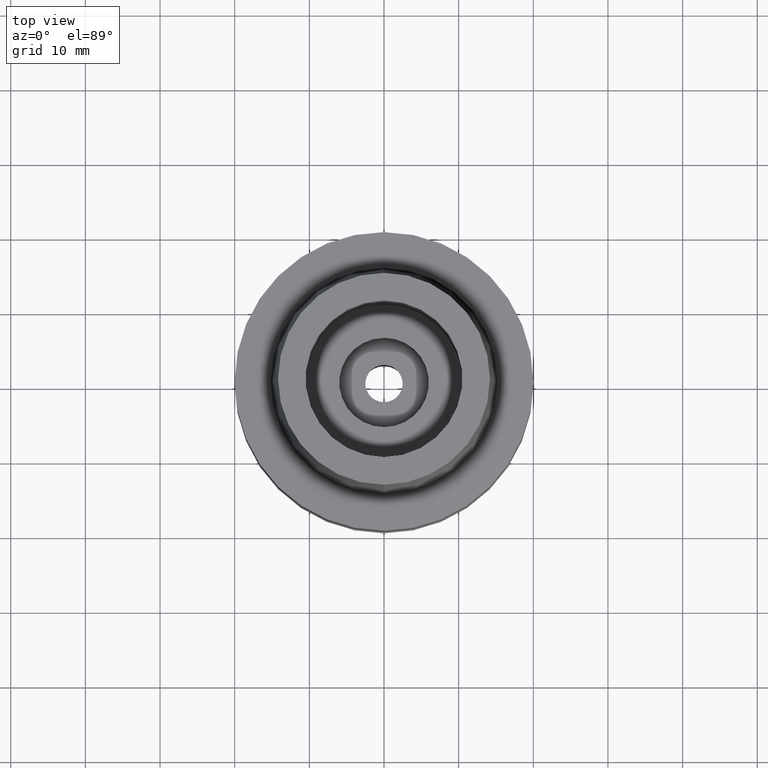
[diagram: clean part render]
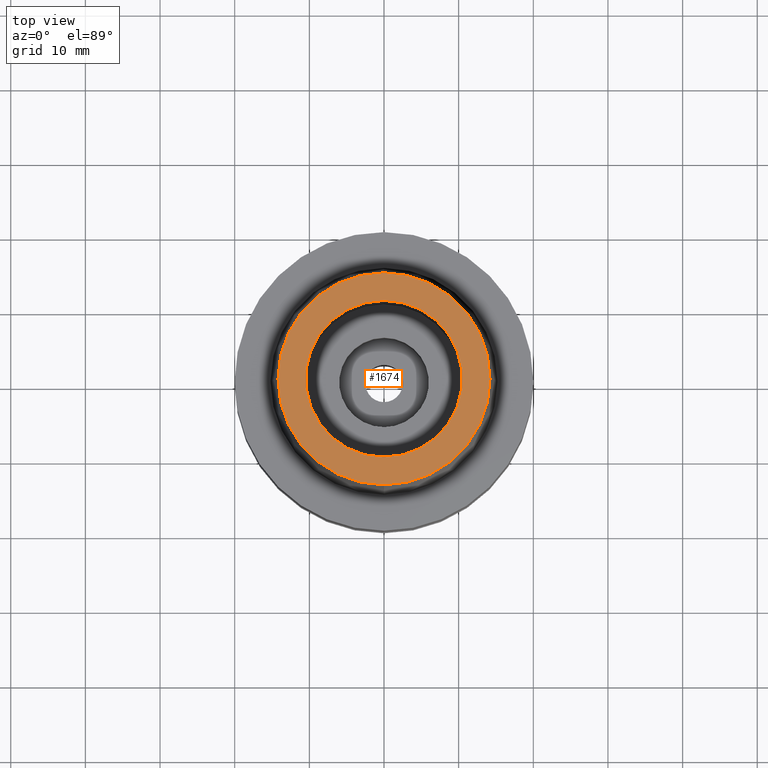
[diagram: same view with one face highlighted and labeled with its STEP entity id]
A machine part, top view. The second image highlights one B-rep face of the part: STEP entity #1674.
In plain terms, the highlighted planar face has unit normal (0, 0, 1).
Its self-contained STEP definition (entity closure, byte-faithful):
#122 = EDGE_LOOP ( 'NONE', ( #636, #2255 ) ) ;
#157 = CARTESIAN_POINT ( 'NONE',  ( 0.0000000000000000000, 10.50000000000000000, 20.00000000000000000 ) ) ;
#221 = EDGE_LOOP ( 'NONE', ( #1792, #1101 ) ) ;
#286 = CARTESIAN_POINT ( 'NONE',  ( 0.0000000000000000000, 0.0000000000000000000, 20.00000000000000000 ) ) ;
#315 = DIRECTION ( 'NONE',  ( 0.0000000000000000000, 0.0000000000000000000, 1.000000000000000000 ) ) ;
#416 = FACE_BOUND ( 'NONE', #221, .T. ) ;
#427 = DIRECTION ( 'NONE',  ( 0.0000000000000000000, 1.000000000000000000, 0.0000000000000000000 ) ) ;
#535 = DIRECTION ( 'NONE',  ( 0.0000000000000000000, 0.0000000000000000000, -1.000000000000000000 ) ) ;
#603 = DIRECTION ( 'NONE',  ( 1.000000000000000000, 0.0000000000000000000, 0.0000000000000000000 ) ) ;
#636 = ORIENTED_EDGE ( 'NONE', *, *, #1787, .F. ) ;
#712 = CIRCLE ( 'NONE', #1762, 10.50000000000000000 ) ;
#714 = AXIS2_PLACEMENT_3D ( 'NONE', #2399, #535, #1380 ) ;
#765 = VERTEX_POINT ( 'NONE', #800 ) ;
#800 = CARTESIAN_POINT ( 'NONE',  ( 0.0000000000000000000, -14.20000146305999955, 20.00000000000000000 ) ) ;
#814 = AXIS2_PLACEMENT_3D ( 'NONE', #2071, #2666, #603 ) ;
#904 = CARTESIAN_POINT ( 'NONE',  ( 0.0000000000000000000, 0.0000000000000000000, 20.00000000000000000 ) ) ;
#984 = CIRCLE ( 'NONE', #2493, 10.50000000000000000 ) ;
#1101 = ORIENTED_EDGE ( 'NONE', *, *, #1901, .F. ) ;
#1241 = PLANE ( 'NONE',  #814 ) ;
#1379 = CIRCLE ( 'NONE', #714, 14.20000146305999955 ) ;
#1380 = DIRECTION ( 'NONE',  ( 0.0000000000000000000, -1.000000000000000000, 0.0000000000000000000 ) ) ;
#1535 = EDGE_CURVE ( 'NONE', #1629, #2214, #712, .T. ) ;
#1548 = AXIS2_PLACEMENT_3D ( 'NONE', #904, #2536, #427 ) ;
#1567 = DIRECTION ( 'NONE',  ( 0.0000000000000000000, -1.000000000000000000, 0.0000000000000000000 ) ) ;
#1629 = VERTEX_POINT ( 'NONE', #157 ) ;
#1632 = DIRECTION ( 'NONE',  ( 0.0000000000000000000, 1.000000000000000000, 0.0000000000000000000 ) ) ;
#1674 = ADVANCED_FACE ( 'NONE', ( #1845, #416 ), #1241, .T. ) ;
#1762 = AXIS2_PLACEMENT_3D ( 'NONE', #1807, #2604, #1632 ) ;
#1787 = EDGE_CURVE ( 'NONE', #2091, #765, #2024, .T. ) ;
#1792 = ORIENTED_EDGE ( 'NONE', *, *, #1535, .F. ) ;
#1807 = CARTESIAN_POINT ( 'NONE',  ( 0.0000000000000000000, 0.0000000000000000000, 20.00000000000000000 ) ) ;
#1845 = FACE_OUTER_BOUND ( 'NONE', #122, .T. ) ;
#1901 = EDGE_CURVE ( 'NONE', #2214, #1629, #984, .T. ) ;
#1928 = EDGE_CURVE ( 'NONE', #765, #2091, #1379, .T. ) ;
#2024 = CIRCLE ( 'NONE', #1548, 14.20000146305999955 ) ;
#2071 = CARTESIAN_POINT ( 'NONE',  ( 0.0000000000000000000, 0.0000000000000000000, 20.00000000000000000 ) ) ;
#2091 = VERTEX_POINT ( 'NONE', #2541 ) ;
#2214 = VERTEX_POINT ( 'NONE', #2338 ) ;
#2255 = ORIENTED_EDGE ( 'NONE', *, *, #1928, .F. ) ;
#2338 = CARTESIAN_POINT ( 'NONE',  ( 0.0000000000000000000, -10.50000000000000000, 20.00000000000000000 ) ) ;
#2399 = CARTESIAN_POINT ( 'NONE',  ( 0.0000000000000000000, 0.0000000000000000000, 20.00000000000000000 ) ) ;
#2493 = AXIS2_PLACEMENT_3D ( 'NONE', #286, #315, #1567 ) ;
#2536 = DIRECTION ( 'NONE',  ( 0.0000000000000000000, 0.0000000000000000000, -1.000000000000000000 ) ) ;
#2541 = CARTESIAN_POINT ( 'NONE',  ( 0.0000000000000000000, 14.20000146305999955, 20.00000000000000000 ) ) ;
#2604 = DIRECTION ( 'NONE',  ( 0.0000000000000000000, 0.0000000000000000000, 1.000000000000000000 ) ) ;
#2666 = DIRECTION ( 'NONE',  ( 0.0000000000000000000, 0.0000000000000000000, 1.000000000000000000 ) ) ;